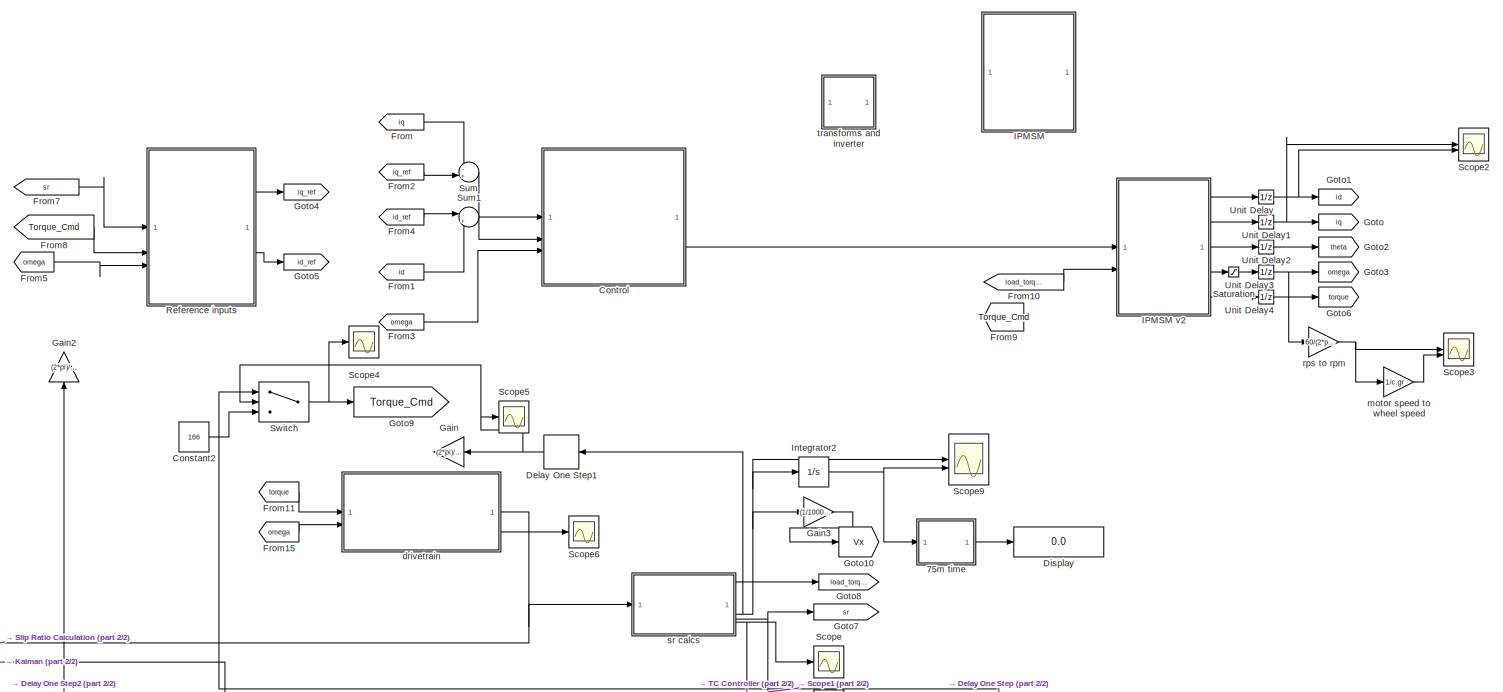
[diagram: root canvas - part 1/2, full width, top band]
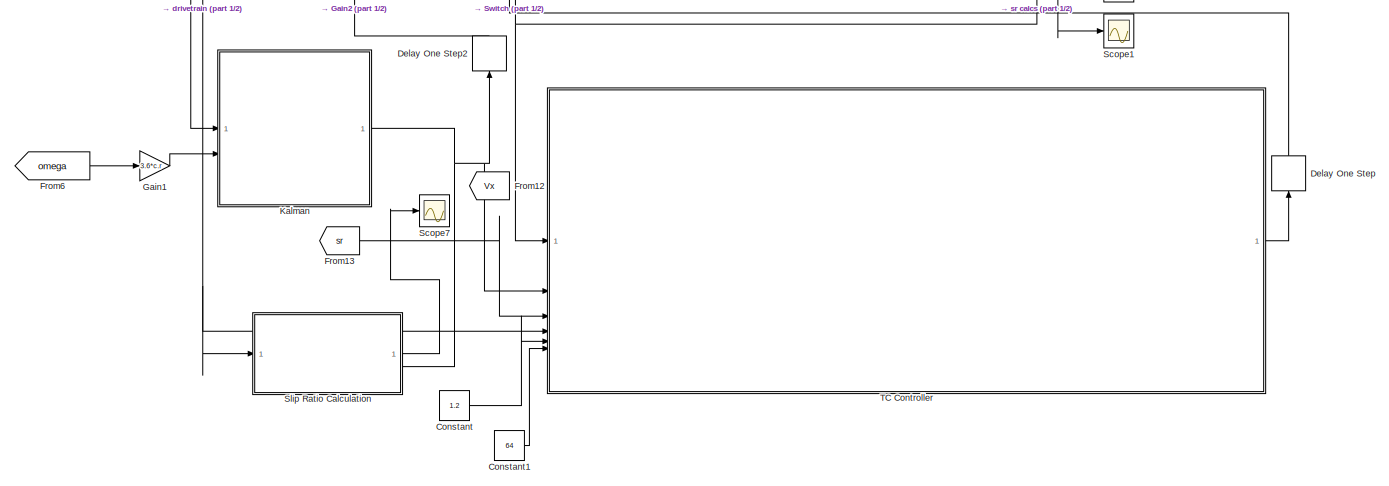
[diagram: root canvas - part 2/2, full width, bottom band]
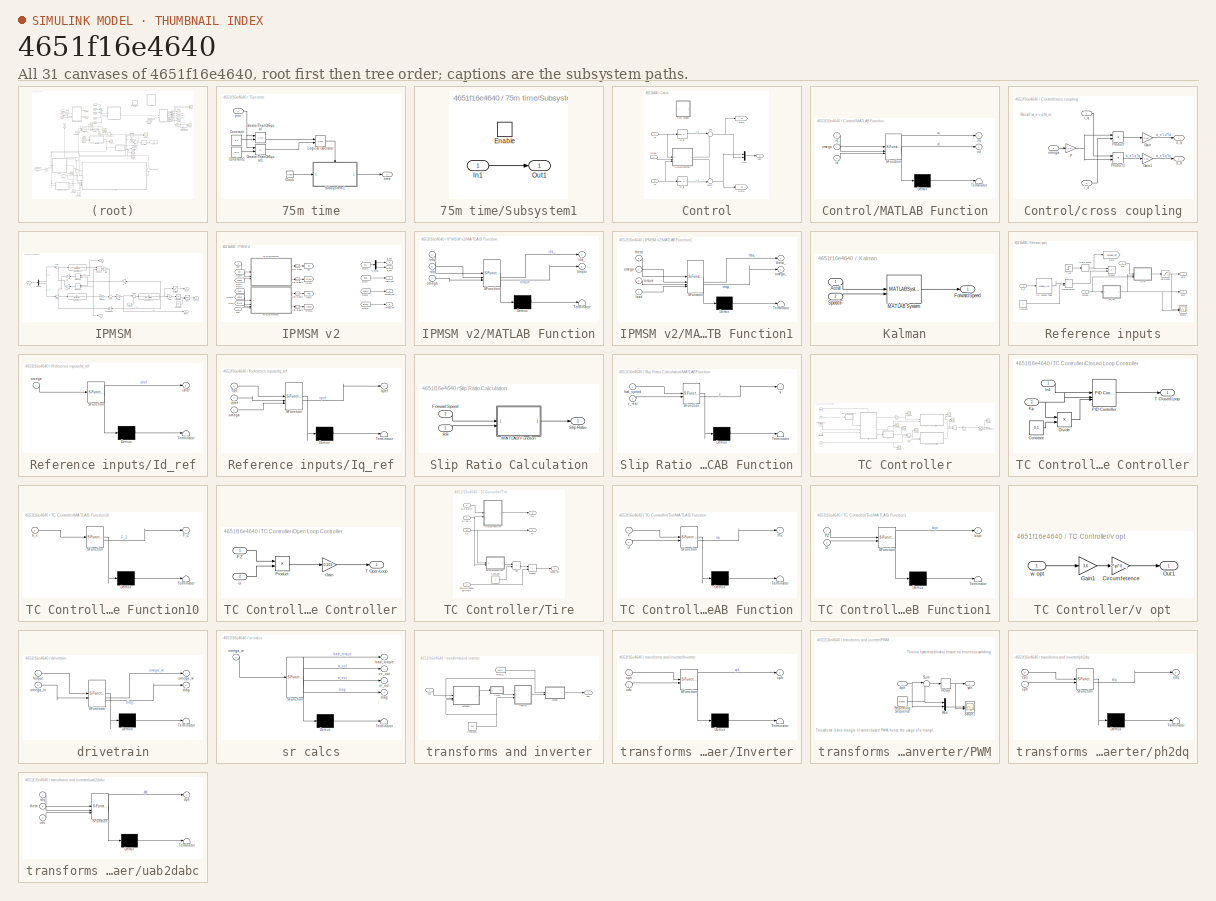
[diagram: thumbnail index - all 31 canvases of the model, root first then tree order]
MODEL slx_4651f16e4640
KIND model
CONFIG AbsTol = auto
CONFIG EnableMultiTasking = off
CONFIG FixedStep = sim.Ts
CONFIG MaxStep = auto
CONFIG MinStep = auto
CONFIG RelTol = 1e-3
CONFIG SampleTimeConstraint = Unconstrained
CONFIG SolverName = ode5
CONFIG StartTime = 0.0
CONFIG StopTime = sim.time
BLOCK [SubSystem] 75m time
BLOCK [Clock] 75m time/Clock
BLOCK [Constant] 75m time/Constant
  Value = 0.3
BLOCK [Constant] 75m time/Constant2
  Value = 75.3
BLOCK [RelationalOperator] 75m time/GreaterThanOrEqual
  InputSameDT = off
  OutDataTypeStr = boolean
  RndMeth = Simplest
BLOCK [RelationalOperator] 75m time/GreaterThanOrEqual1
  InputSameDT = off
  Operator = <=
  OutDataTypeStr = boolean
  RndMeth = Simplest
BLOCK [Logic] 75m time/Logical Operator
  AllPortsSameDT = off
  OutDataTypeStr = boolean
BLOCK [SubSystem] 75m time/Subsystem1
BLOCK [EnablePort] 75m time/Subsystem1/Enable
BLOCK [Inport] 75m time/Subsystem1/In1
BLOCK [Outport] 75m time/Subsystem1/Out1
BLOCK [Inport] 75m time/pos
BLOCK [Outport] 75m time/time
BLOCK [Constant] Constant
  Value = 1.2
BLOCK [Constant] Constant1
  Value = 64
BLOCK [Constant] Constant2
  Value = 166
BLOCK [SubSystem] Control
BLOCK [Goto] Control/Goto
  GotoTag = vq
  TagVisibility = global
BLOCK [Goto] Control/Goto1
  GotoTag = vd
  TagVisibility = global
BLOCK [SubSystem] Control/MATLAB Function
  ErrorFcn = Stateflow.Translate.translate
  PermitHierarchicalResolution = ExplicitOnly
  SFBlockType = MATLAB Function
  TreatAsAtomicUnit = on
BLOCK [Demux] Control/MATLAB Function/ Demux 
  Outputs = 1
BLOCK [S-Function] Control/MATLAB Function/ SFunction 
  EnableBusSupport = on
  FunctionName = sf_sfun
  Parameters = c
  PortCounts = [3 3]
  SFcnIsStateOwnerBlock = off
  SFunctionDeploymentMode = off
  Tag = Stateflow S-Function 6
BLOCK [Terminator] Control/MATLAB Function/ Terminator 
BLOCK [Inport] Control/MATLAB Function/id
  Port = 3
BLOCK [Inport] Control/MATLAB Function/iq
BLOCK [Inport] Control/MATLAB Function/omega
  Port = 2
BLOCK [Outport] Control/MATLAB Function/ud
  Port = 2
BLOCK [Outport] Control/MATLAB Function/uq
BLOCK [Mux] Control/Mux
  DisplayOption = bar
  Inputs = 2
BLOCK [Reference] Control/R_id  REF=slpidlib/PID Controller
  LibrarySourceBlock = simulink/Continuous/PID Controller
  SourceBlock = slpidlib/PID Controller
  SourceType = PID 1dof
BLOCK [Reference] Control/R_iq  REF=slpidlib/PID Controller
  LibrarySourceBlock = simulink/Continuous/PID Controller
  SourceBlock = slpidlib/PID Controller
  SourceType = PID 1dof
BLOCK [Sum] Control/Sum
  Inputs = |++
BLOCK [Sum] Control/Sum1
  Inputs = -+|
BLOCK [SubSystem] Control/cross coupling
  Commented = on
BLOCK [Gain] Control/cross coupling/Gain
  Gain = c.Ld
BLOCK [Gain] Control/cross coupling/Gain1
  Gain = c.Lq
BLOCK [Product] Control/cross coupling/Product
BLOCK [Product] Control/cross coupling/Product1
BLOCK [Inport] Control/cross coupling/i_d
  Port = 3
BLOCK [Inport] Control/cross coupling/i_q
BLOCK [Inport] Control/cross coupling/omega
  Port = 2
BLOCK [Gain] Control/cross coupling/p
  Gain = c.p
BLOCK [Outport] Control/cross coupling/u_d
  Port = 2
BLOCK [Outport] Control/cross coupling/u_q
BLOCK [Inport] Control/i_d
  Port = 2
BLOCK [Inport] Control/i_q
BLOCK [Inport] Control/omega
  Port = 3
BLOCK [Outport] Control/udq
BLOCK [Delay] Delay One Step
  DelayLength = 1
  InputPortMap = u0
  NameLocation = right
BLOCK [Delay] Delay One Step1
  DelayLength = 1
  InputPortMap = u0
  NameLocation = top
BLOCK [Delay] Delay One Step2
  DelayLength = 1
  InputPortMap = u0
  NameLocation = right
BLOCK [Display] Display
  Decimation = 1
BLOCK [From] From
  GotoTag = iq
  TagVisibility = global
BLOCK [From] From1
  GotoTag = id
  TagVisibility = global
BLOCK [From] From10
  GotoTag = load_torque
  NameLocation = top
  TagVisibility = global
BLOCK [From] From11
  GotoTag = torque
  TagVisibility = global
BLOCK [From] From12
  GotoTag = Vx
BLOCK [From] From13
  GotoTag = sr
  TagVisibility = global
BLOCK [From] From15
  GotoTag = omega
  TagVisibility = global
BLOCK [From] From2
  GotoTag = iq_ref
BLOCK [From] From3
  GotoTag = omega
  TagVisibility = global
BLOCK [From] From4
  GotoTag = id_ref
BLOCK [From] From5
  GotoTag = omega
  TagVisibility = global
BLOCK [From] From6
  GotoTag = omega
  TagVisibility = global
BLOCK [From] From7
  GotoTag = sr
  TagVisibility = global
BLOCK [From] From8
  GotoTag = Torque_Cmd
BLOCK [From] From9
  GotoTag = Torque_Cmd
BLOCK [Gain] Gain
  Gain = (2*pi)/60
  NameLocation = top
BLOCK [Gain] Gain1
  Gain = 3.6*c.r
BLOCK [Gain] Gain2
  Gain = (2*pi)/60
  NameLocation = right
BLOCK [Gain] Gain3
  Gain = (1/1000)*3600
BLOCK [Goto] Goto
  GotoTag = iq
  TagVisibility = global
BLOCK [Goto] Goto1
  GotoTag = id
  TagVisibility = global
BLOCK [Goto] Goto10
  GotoTag = Vx
BLOCK [Goto] Goto2
  GotoTag = theta
  TagVisibility = global
BLOCK [Goto] Goto3
  GotoTag = omega
  TagVisibility = global
BLOCK [Goto] Goto4
  GotoTag = iq_ref
BLOCK [Goto] Goto5
  GotoTag = id_ref
BLOCK [Goto] Goto6
  GotoTag = torque
  TagVisibility = global
BLOCK [Goto] Goto7
  GotoTag = sr
  TagVisibility = global
BLOCK [Goto] Goto8
  GotoTag = load_torque
  TagVisibility = global
BLOCK [Goto] Goto9
  GotoTag = Torque_Cmd
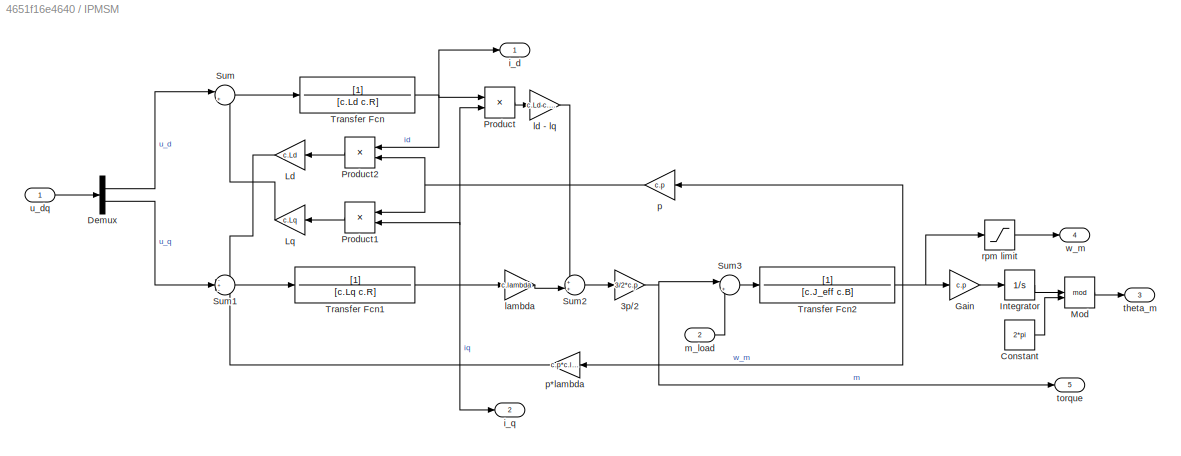
BLOCK [SubSystem] IPMSM
  Commented = on
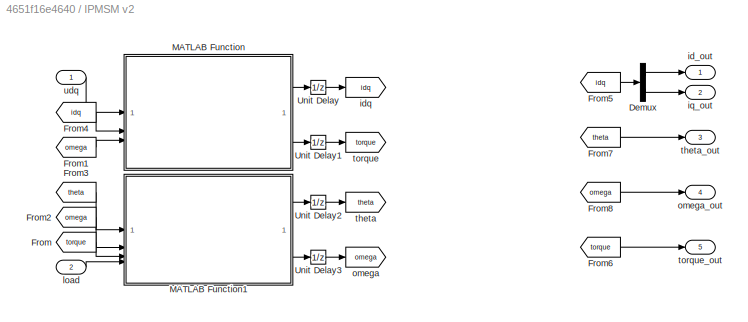
BLOCK [SubSystem] IPMSM v2
BLOCK [Demux] IPMSM v2/Demux
  Outputs = 2
BLOCK [From] IPMSM v2/From
  GotoTag = torque
BLOCK [From] IPMSM v2/From1
  GotoTag = omega
BLOCK [From] IPMSM v2/From2
  GotoTag = omega
BLOCK [From] IPMSM v2/From3
  GotoTag = theta
BLOCK [From] IPMSM v2/From4
  GotoTag = idq
BLOCK [From] IPMSM v2/From5
  GotoTag = idq
BLOCK [From] IPMSM v2/From6
  GotoTag = torque
BLOCK [From] IPMSM v2/From7
  GotoTag = theta
BLOCK [From] IPMSM v2/From8
  GotoTag = omega
BLOCK [SubSystem] IPMSM v2/MATLAB Function
  ErrorFcn = Stateflow.Translate.translate
  PermitHierarchicalResolution = ExplicitOnly
  SFBlockType = MATLAB Function
  TreatAsAtomicUnit = on
BLOCK [Demux] IPMSM v2/MATLAB Function/ Demux 
  Outputs = 1
BLOCK [S-Function] IPMSM v2/MATLAB Function/ SFunction 
  EnableBusSupport = on
  FunctionName = sf_sfun
  Parameters = c
  PortCounts = [3 3]
  SFcnIsStateOwnerBlock = off
  SFunctionDeploymentMode = off
  Tag = Stateflow S-Function 1
BLOCK [Terminator] IPMSM v2/MATLAB Function/ Terminator 
BLOCK [Inport] IPMSM v2/MATLAB Function/idq
  Port = 2
BLOCK [Outport] IPMSM v2/MATLAB Function/idq_
BLOCK [Inport] IPMSM v2/MATLAB Function/omega
  Port = 3
BLOCK [Outport] IPMSM v2/MATLAB Function/torque
  Port = 2
BLOCK [Inport] IPMSM v2/MATLAB Function/udq
BLOCK [SubSystem] IPMSM v2/MATLAB Function1
  ErrorFcn = Stateflow.Translate.translate
  PermitHierarchicalResolution = ExplicitOnly
  SFBlockType = MATLAB Function
  TreatAsAtomicUnit = on
BLOCK [Demux] IPMSM v2/MATLAB Function1/ Demux 
  Outputs = 1
BLOCK [S-Function] IPMSM v2/MATLAB Function1/ SFunction 
  EnableBusSupport = on
  FunctionName = sf_sfun
  Parameters = c
  PortCounts = [4 3]
  SFcnIsStateOwnerBlock = off
  SFunctionDeploymentMode = off
  Tag = Stateflow S-Function 4
BLOCK [Terminator] IPMSM v2/MATLAB Function1/ Terminator 
BLOCK [Inport] IPMSM v2/MATLAB Function1/load
  Port = 4
BLOCK [Inport] IPMSM v2/MATLAB Function1/omega
  Port = 2
BLOCK [Outport] IPMSM v2/MATLAB Function1/omega_
  Port = 2
BLOCK [Inport] IPMSM v2/MATLAB Function1/theta
BLOCK [Outport] IPMSM v2/MATLAB Function1/theta_
BLOCK [Inport] IPMSM v2/MATLAB Function1/torque
  Port = 3
BLOCK [UnitDelay] IPMSM v2/Unit Delay
  HasFrameUpgradeWarning = on
  SampleTime = -1
BLOCK [UnitDelay] IPMSM v2/Unit Delay1
  HasFrameUpgradeWarning = on
  SampleTime = -1
BLOCK [UnitDelay] IPMSM v2/Unit Delay2
  HasFrameUpgradeWarning = on
  SampleTime = -1
BLOCK [UnitDelay] IPMSM v2/Unit Delay3
  HasFrameUpgradeWarning = on
  SampleTime = -1
BLOCK [Outport] IPMSM v2/id_out
BLOCK [Goto] IPMSM v2/idq
  GotoTag = idq
BLOCK [Outport] IPMSM v2/iq_out
  Port = 2
BLOCK [Inport] IPMSM v2/load
  Port = 2
BLOCK [Goto] IPMSM v2/omega
  GotoTag = omega
BLOCK [Outport] IPMSM v2/omega_out
  Port = 4
BLOCK [Goto] IPMSM v2/theta
  GotoTag = theta
BLOCK [Outport] IPMSM v2/theta_out
  Port = 3
BLOCK [Goto] IPMSM v2/torque
  GotoTag = torque
BLOCK [Outport] IPMSM v2/torque_out
  Port = 5
BLOCK [Inport] IPMSM v2/udq
BLOCK [Gain] IPMSM/3p//2
  Gain = 3/2*c.p
BLOCK [Constant] IPMSM/Constant
  Value = 2*pi
BLOCK [Demux] IPMSM/Demux
  Outputs = 2
BLOCK [Gain] IPMSM/Gain
  Gain = c.p
BLOCK [Integrator] IPMSM/Integrator
BLOCK [Gain] IPMSM/Ld
  Gain = c.Ld
BLOCK [Gain] IPMSM/Lq
  Gain = c.Lq
BLOCK [Math] IPMSM/Mod
  Operator = mod
BLOCK [Product] IPMSM/Product
BLOCK [Product] IPMSM/Product1
  NameLocation = top
BLOCK [Product] IPMSM/Product2
  NameLocation = top
BLOCK [Sum] IPMSM/Sum
  Inputs = |++
BLOCK [Sum] IPMSM/Sum1
  Inputs = -+-
BLOCK [Sum] IPMSM/Sum2
  Inputs = ++|
BLOCK [Sum] IPMSM/Sum3
  Inputs = |+-
BLOCK [TransferFcn] IPMSM/Transfer Fcn
  Denominator = [c.Ld c.R]
BLOCK [TransferFcn] IPMSM/Transfer Fcn1
  Denominator = [c.Lq c.R]
BLOCK [TransferFcn] IPMSM/Transfer Fcn2
  Denominator = [c.J_eff c.B]
BLOCK [Outport] IPMSM/i_d
BLOCK [Outport] IPMSM/i_q
  Port = 2
BLOCK [Gain] IPMSM/lambda
  Gain = c.lambda
BLOCK [Gain] IPMSM/ld - lq
  Gain = c.Ld-c.Lq
BLOCK [Inport] IPMSM/m_load
  Port = 2
BLOCK [Gain] IPMSM/p
  Gain = c.p
BLOCK [Gain] IPMSM/p*lambda
  Gain = c.p*c.lambda
BLOCK [Saturate] IPMSM/rpm limit
  LowerLimit = 0
  UpperLimit = c.max_rpm
BLOCK [Outport] IPMSM/theta_m
  Port = 3
BLOCK [Outport] IPMSM/torque
  Port = 5
BLOCK [Inport] IPMSM/u_dq
BLOCK [Outport] IPMSM/w_m
  Port = 4
BLOCK [Integrator] Integrator2
BLOCK [SubSystem] Kalman
BLOCK [Inport] Kalman/Accel
BLOCK [Outport] Kalman/Forward Speed
BLOCK [MATLABSystem] Kalman/MATLAB System
  MaskDisplay = disp('Kalman_Filter_Simulink');\nport_label('input',1,'a');\nport_label('input',2,'v_f');\nport_label('output',1,'v');
  MaskType = Kalman_Filter_Simulink
  SimulateUsing = Code generation
  System = Kalman_Filter_Simulink
  qgain = 1
BLOCK [Inport] Kalman/Speed F
  Port = 2
BLOCK [SubSystem] Reference inputs
BLOCK [Lookup_n-D] Reference inputs/1-D Lookup Table
  BreakpointsForDimension1 = linspace(0, 0.5, 100)
  InputPortMap = u0
  InternalRulePriority = Speed
  NumberOfTableDimensions = 1
  RndMeth = Simplest
  Table = (-tanh(linspace(-3, 3, 100))+1)/2
BLOCK [Constant] Reference inputs/Constant
BLOCK [Goto] Reference inputs/Goto
  GotoTag = torque_ref
  TagVisibility = global
BLOCK [SubSystem] Reference inputs/Id_ref
  ErrorFcn = Stateflow.Translate.translate
  PermitHierarchicalResolution = ExplicitOnly
  SFBlockType = MATLAB Function
  TreatAsAtomicUnit = on
BLOCK [Demux] Reference inputs/Id_ref/ Demux 
  Outputs = 1
BLOCK [S-Function] Reference inputs/Id_ref/ SFunction 
  EnableBusSupport = on
  FunctionName = sf_sfun
  Parameters = c
  PortCounts = [1 2]
  SFcnIsStateOwnerBlock = off
  SFunctionDeploymentMode = off
  Tag = Stateflow S-Function 9
BLOCK [Terminator] Reference inputs/Id_ref/ Terminator 
BLOCK [Outport] Reference inputs/Id_ref/idref
BLOCK [Inport] Reference inputs/Id_ref/omega
BLOCK [SubSystem] Reference inputs/Iq_ref
  ErrorFcn = Stateflow.Translate.translate
  PermitHierarchicalResolution = ExplicitOnly
  SFBlockType = MATLAB Function
  TreatAsAtomicUnit = on
BLOCK [Demux] Reference inputs/Iq_ref/ Demux 
  Outputs = 1
BLOCK [S-Function] Reference inputs/Iq_ref/ SFunction 
  EnableBusSupport = on
  FunctionName = sf_sfun
  Parameters = c
  PortCounts = [3 2]
  SFcnIsStateOwnerBlock = off
  SFunctionDeploymentMode = off
  Tag = Stateflow S-Function 5
BLOCK [Terminator] Reference inputs/Iq_ref/ Terminator 
BLOCK [Inport] Reference inputs/Iq_ref/Tref
BLOCK [Inport] Reference inputs/Iq_ref/idref
  Port = 2
BLOCK [Outport] Reference inputs/Iq_ref/iqref
BLOCK [Inport] Reference inputs/Iq_ref/omega
  Port = 3
BLOCK [ManualSwitch] Reference inputs/Manual Switch
BLOCK [Product] Reference inputs/Product
BLOCK [RateLimiter] Reference inputs/Rate Limiter
  FallingSlewLimit = -5e3
  RisingSlewLimit = 5e3
  SampleTimeMode = inherited
BLOCK [Saturate] Reference inputs/Saturation
  LowerLimit = -c.I_peak
  UpperLimit = c.I_peak
BLOCK [Scope] Reference inputs/Scope1
  Floating = off
  NumInputPorts = 2
  ScopeSpecificationString = Simulink.scopes.TimeScopeBlockCfg('CurrentConfiguration', extmgr.ConfigurationSet(extmgr.Configuration('Core','General UI',true),extmgr.Configuration('Core','Source UI',true),extmgr.Configuration('Sources','WiredSimulink',true,'DataLoggingVariableName','ScopeData1'),extmgr.Configuration('Visuals','Time Domain',true,'SerializedDisplays',{struct('MinYLimReal','-247.40296','MaxYLimReal','426.56086','...<+1511ch>
BLOCK [Step] Reference inputs/T_ref
  After = T_ref
  SampleTime = sim.Ts
  Time = 0
BLOCK [Inport] Reference inputs/Tref
  Port = 2
BLOCK [Outport] Reference inputs/idref
  Port = 2
BLOCK [Outport] Reference inputs/iqref
BLOCK [Inport] Reference inputs/omega
  Port = 3
BLOCK [Inport] Reference inputs/sr_in
BLOCK [Saturate] Saturation
  LowerLimit = 0
  UpperLimit = c.max_rpm
BLOCK [Scope] Scope
  Floating = off
  NumInputPorts = 1
  ScopeSpecificationString = Simulink.scopes.TimeScopeBlockCfg('CurrentConfiguration', extmgr.ConfigurationSet(extmgr.Configuration('Core','General UI',true),extmgr.Configuration('Core','Source UI',true),extmgr.Configuration('Sources','WiredSimulink',true,'DataLoggingVariableName','ScopeData1'),extmgr.Configuration('Visuals','Time Domain',true,'SerializedDisplays',{struct('MinYLimReal','-0.10137','MaxYLimReal','0.91232','YLab...<+1555ch>
BLOCK [Scope] Scope1
  Floating = off
  NumInputPorts = 1
  ScopeSpecificationString = Simulink.scopes.TimeScopeBlockCfg('CurrentConfiguration', extmgr.ConfigurationSet(extmgr.Configuration('Core','General UI',true),extmgr.Configuration('Core','Source UI',true),extmgr.Configuration('Sources','WiredSimulink',true,'DataLoggingVariableName','ScopeData2'),extmgr.Configuration('Visuals','Time Domain',true,'SerializedDisplays',{struct('MinYLimReal','-36731175379511787494187982823609684287...<+2842ch>
BLOCK [Scope] Scope2
  Floating = off
  NumInputPorts = 2
  ScopeSpecificationString = Simulink.scopes.TimeScopeBlockCfg('CurrentConfiguration', extmgr.ConfigurationSet(extmgr.Configuration('Core','General UI',true),extmgr.Configuration('Core','Source UI',true),extmgr.Configuration('Sources','WiredSimulink',true,'DataLoggingVariableName','ScopeData2'),extmgr.Configuration('Visuals','Time Domain',true,'SerializedDisplays',{struct('MinYLimReal','-92604.51498','MaxYLimReal','91278.9172...<+1521ch>
BLOCK [Scope] Scope3
  Floating = off
  NumInputPorts = 2
  ScopeSpecificationString = Simulink.scopes.TimeScopeBlockCfg('CurrentConfiguration', extmgr.ConfigurationSet(extmgr.Configuration('Core','General UI',true),extmgr.Configuration('Core','Source UI',true),extmgr.Configuration('Sources','WiredSimulink',true,'DataLoggingVariableName','ScopeData3'),extmgr.Configuration('Visuals','Time Domain',true,'SerializedDisplays',{struct('MinYLimReal','-19.65378','MaxYLimReal','181.39327','Y...<+1616ch>
BLOCK [Scope] Scope4
  Floating = off
  NumInputPorts = 1
  ScopeSpecificationString = Simulink.scopes.TimeScopeBlockCfg('CurrentConfiguration', extmgr.ConfigurationSet(extmgr.Configuration('Core','General UI',true),extmgr.Configuration('Core','Source UI',true),extmgr.Configuration('Sources','WiredSimulink',true,'DataLoggingVariableName','ScopeData1'),extmgr.Configuration('Visuals','Time Domain',true,'SerializedDisplays',{struct('MinYLimReal','0.61024','MaxYLimReal','171.83301','YLa...<+1638ch>
BLOCK [Scope] Scope5
  Floating = off
  NumInputPorts = 1
  ScopeSpecificationString = Simulink.scopes.TimeScopeBlockCfg('CurrentConfiguration', extmgr.ConfigurationSet(extmgr.Configuration('Core','General UI',true),extmgr.Configuration('Core','Source UI',true),extmgr.Configuration('Sources','WiredSimulink',true,'DataLoggingVariableName','ScopeData2'),extmgr.Configuration('Visuals','Time Domain',true,'SerializedDisplays',{struct('MinYLimReal','-0.1371','MaxYLimReal','1.23387','YLabe...<+1461ch>
BLOCK [Scope] Scope6
  Floating = off
  NumInputPorts = 1
  ScopeSpecificationString = Simulink.scopes.TimeScopeBlockCfg('CurrentConfiguration', extmgr.ConfigurationSet(extmgr.Configuration('Core','General UI',true),extmgr.Configuration('Core','Source UI',true),extmgr.Configuration('Sources','WiredSimulink',true,'DataLoggingVariableName','ScopeData3'),extmgr.Configuration('Visuals','Time Domain',true,'SerializedDisplays',{struct('MinYLimReal','-0.98767','MaxYLimReal','8.88903','YLab...<+1652ch>
BLOCK [Scope] Scope7
  Floating = off
  NumInputPorts = 1
  ScopeSpecificationString = Simulink.scopes.TimeScopeBlockCfg('CurrentConfiguration', extmgr.ConfigurationSet(extmgr.Configuration('Core','General UI',true),extmgr.Configuration('Core','Source UI',true),extmgr.Configuration('Sources','WiredSimulink',true,'DataLoggingVariableName','ScopeData3'),extmgr.Configuration('Visuals','Time Domain',true,'SerializedDisplays',{struct('MinYLimReal','-1.36638','MaxYLimReal','2.29745','YLab...<+1489ch>
BLOCK [Scope] Scope9
  Floating = off
  NumInputPorts = 2
  ScopeSpecificationString = Simulink.scopes.TimeScopeBlockCfg('CurrentConfiguration', extmgr.ConfigurationSet(extmgr.Configuration('Core','General UI',true),extmgr.Configuration('Core','Source UI',true),extmgr.Configuration('Sources','WiredSimulink',true,'DataLoggingVariableName','ScopeData1'),extmgr.Configuration('Visuals','Time Domain',true,'SerializedDisplays',{struct('MinYLimReal','-0.0245','MaxYLimReal','0.22051','YLabe...<+1539ch>
BLOCK [SubSystem] Slip Ratio Calculation
  PortSchema = {"entries":[{"content":{"sides":[{"content":{"connectorIds":["In1"]},"type":"ConnectorPlacement.EquallySpacedRectSide","uuid":"061c82cd-7e9c-4a72-b965-43235230dad9"},{"content":{"connectorIds":["Out1"],"side":"RIGHT"},"type":"ConnectorPlacement.EquallySpacedRectSide","uuid":"899eaa50-1c30-4f77-9d66-a8daefd9f1e3"},{"content":{"connectorIds":["In2"],"side":"TOP"},"type":"ConnectorPlacement.EquallySp...<+245ch>
BLOCK [Inport] Slip Ratio Calculation/Forward Speed
  Port = 2
BLOCK [SubSystem] Slip Ratio Calculation/MATLAB Function
  ErrorFcn = Stateflow.Translate.translate
  PermitHierarchicalResolution = ExplicitOnly
  SFBlockType = MATLAB Function
  TreatAsAtomicUnit = on
BLOCK [Demux] Slip Ratio Calculation/MATLAB Function/ Demux 
  Outputs = 1
BLOCK [S-Function] Slip Ratio Calculation/MATLAB Function/ SFunction 
  EnableBusSupport = on
  FunctionName = sf_sfun
  PortCounts = [2 2]
  SFcnIsStateOwnerBlock = off
  SFunctionDeploymentMode = off
  Tag = Stateflow S-Function 10
BLOCK [Terminator] Slip Ratio Calculation/MATLAB Function/ Terminator 
BLOCK [Inport] Slip Ratio Calculation/MATLAB Function/fwd_speed
BLOCK [Inport] Slip Ratio Calculation/MATLAB Function/v_rear
  Port = 2
BLOCK [Outport] Slip Ratio Calculation/MATLAB Function/y
BLOCK [Inport] Slip Ratio Calculation/RR
BLOCK [Outport] Slip Ratio Calculation/Slip Ratio
BLOCK [Sum] Sum
  Inputs = -+|
BLOCK [Sum] Sum1
  Inputs = |+-
BLOCK [Switch] Switch
  Criteria = u2 > Threshold
  InputSameDT = off
  SaturateOnIntegerOverflow = off
BLOCK [SubSystem] TC Controller
BLOCK [Sum] TC Controller/Add
  IconShape = rectangular
BLOCK [SubSystem] TC Controller/Closed Loop Controller
BLOCK [Constant] TC Controller/Closed Loop Controller/Constant
  Value = 0.5
BLOCK [Product] TC Controller/Closed Loop Controller/Divide
  Inputs = */
BLOCK [Inport] TC Controller/Closed Loop Controller/In1
BLOCK [Inport] TC Controller/Closed Loop Controller/Kp
  Port = 2
BLOCK [Reference] TC Controller/Closed Loop Controller/PID Controller  REF=slpidlib/PID Controller
  LibrarySourceBlock = simulink/Continuous/PID Controller
  SourceBlock = slpidlib/PID Controller
  SourceType = PID 1dof
BLOCK [Outport] TC Controller/Closed Loop Controller/T Closed Loop
BLOCK [Inport] TC Controller/Driver u
  Port = 5
BLOCK [Inport] TC Controller/Forward Speed Estimate
  Port = 2
BLOCK [Gain] TC Controller/Gain
  Gain = 9.8
BLOCK [Gain] TC Controller/Gain1
  Gain = 1/4.9
BLOCK [Inport] TC Controller/Kp
  Port = 6
BLOCK [SubSystem] TC Controller/MATLAB Function10
  ErrorFcn = Stateflow.Translate.translate
  PermitHierarchicalResolution = ExplicitOnly
  SFBlockType = MATLAB Function
  TreatAsAtomicUnit = on
BLOCK [Demux] TC Controller/MATLAB Function10/ Demux 
  Outputs = 1
BLOCK [S-Function] TC Controller/MATLAB Function10/ SFunction 
  EnableBusSupport = on
  FunctionName = sf_sfun
  PortCounts = [1 2]
  SFcnIsStateOwnerBlock = off
  SFunctionDeploymentMode = off
  Tag = Stateflow S-Function 16
BLOCK [Terminator] TC Controller/MATLAB Function10/ Terminator 
BLOCK [Outport] TC Controller/MATLAB Function10/F_Z
BLOCK [Inport] TC Controller/MATLAB Function10/a_x
BLOCK [SubSystem] TC Controller/Open Loop Controller
BLOCK [Inport] TC Controller/Open Loop Controller/FZ
BLOCK [Gain] TC Controller/Open Loop Controller/Gain
  Gain = 0.203
BLOCK [Product] TC Controller/Open Loop Controller/Product
BLOCK [Outport] TC Controller/Open Loop Controller/T Open Loop
BLOCK [Inport] TC Controller/Open Loop Controller/u
  Port = 2
BLOCK [Saturate] TC Controller/Saturation
  LowerLimit = 0
  UpperLimit = 166
BLOCK [Scope] TC Controller/Scope
  Floating = off
  NumInputPorts = 1
  ScopeSpecificationString = Simulink.scopes.TimeScopeBlockCfg('CurrentConfiguration', extmgr.ConfigurationSet(extmgr.Configuration('Core','General UI',true),extmgr.Configuration('Core','Source UI',true),extmgr.Configuration('Sources','WiredSimulink',true,'DataLoggingVariableName','ScopeData1'),extmgr.Configuration('Visuals','Time Domain',true,'SerializedDisplays',{struct('MinYLimReal','-20.75','MaxYLimReal','186.75','YLabelR...<+1494ch>
BLOCK [Scope] TC Controller/Scope1
  Floating = off
  NumInputPorts = 1
  ScopeSpecificationString = Simulink.scopes.TimeScopeBlockCfg('CurrentConfiguration', extmgr.ConfigurationSet(extmgr.Configuration('Core','General UI',true),extmgr.Configuration('Core','Source UI',true),extmgr.Configuration('Sources','WiredSimulink',true,'DataLoggingVariableName','ScopeData2'),extmgr.Configuration('Visuals','Time Domain',true,'SerializedDisplays',{struct('MinYLimReal','-48.73024','MaxYLimReal','10.6881','YLa...<+1518ch>
BLOCK [Scope] TC Controller/Scope2
  Floating = off
  NumInputPorts = 1
  ScopeSpecificationString = Simulink.scopes.TimeScopeBlockCfg('CurrentConfiguration', extmgr.ConfigurationSet(extmgr.Configuration('Core','General UI',true),extmgr.Configuration('Core','Source UI',true),extmgr.Configuration('Sources','WiredSimulink',true,'DataLoggingVariableName','ScopeData3'),extmgr.Configuration('Visuals','Time Domain',true,'SerializedDisplays',{struct('MinYLimReal','-23.21751','MaxYLimReal','115.79176','Y...<+1497ch>
BLOCK [Scope] TC Controller/Scope3
  Floating = off
  NumInputPorts = 1
  ScopeSpecificationString = Simulink.scopes.TimeScopeBlockCfg('CurrentConfiguration', extmgr.ConfigurationSet(extmgr.Configuration('Core','General UI',true),extmgr.Configuration('Core','Source UI',true),extmgr.Configuration('Sources','WiredSimulink',true,'DataLoggingVariableName','ScopeData4'),extmgr.Configuration('Visuals','Time Domain',true,'SerializedDisplays',{struct('MinYLimReal','-0.14999','MaxYLimReal','1.34995','YLab...<+1474ch>
BLOCK [Scope] TC Controller/Scope4
  Floating = off
  NumInputPorts = 1
  ScopeSpecificationString = Simulink.scopes.TimeScopeBlockCfg('CurrentConfiguration', extmgr.ConfigurationSet(extmgr.Configuration('Core','General UI',true),extmgr.Configuration('Core','Source UI',true),extmgr.Configuration('Sources','WiredSimulink',true,'DataLoggingVariableName','ScopeData5'),extmgr.Configuration('Visuals','Time Domain',true,'SerializedDisplays',{struct('MinYLimReal','1556.73934','MaxYLimReal','1559.23366',...<+1493ch>
BLOCK [Scope] TC Controller/Scope5
  Floating = off
  NumInputPorts = 1
  ScopeSpecificationString = Simulink.scopes.TimeScopeBlockCfg('CurrentConfiguration', extmgr.ConfigurationSet(extmgr.Configuration('Core','General UI',true),extmgr.Configuration('Core','Source UI',true),extmgr.Configuration('Sources','WiredSimulink',true,'DataLoggingVariableName','ScopeData6'),extmgr.Configuration('Visuals','Time Domain',true,'SerializedDisplays',{struct('MinYLimReal','-0.22526','MaxYLimReal','0.38645','YLab...<+1472ch>
BLOCK [Scope] TC Controller/Scope6
  Floating = off
  NumInputPorts = 1
  ScopeSpecificationString = Simulink.scopes.TimeScopeBlockCfg('CurrentConfiguration', extmgr.ConfigurationSet(extmgr.Configuration('Core','General UI',true),extmgr.Configuration('Core','Source UI',true),extmgr.Configuration('Sources','WiredSimulink',true,'DataLoggingVariableName','ScopeData1'),extmgr.Configuration('Visuals','Time Domain',true,'SerializedDisplays',{struct('MinYLimReal','-0.19753','MaxYLimReal','0.04392','YLab...<+1475ch>
BLOCK [Scope] TC Controller/Scope7
  Floating = off
  NumInputPorts = 1
  ScopeSpecificationString = Simulink.scopes.TimeScopeBlockCfg('CurrentConfiguration', extmgr.ConfigurationSet(extmgr.Configuration('Core','General UI',true),extmgr.Configuration('Core','Source UI',true),extmgr.Configuration('Sources','WiredSimulink',true,'DataLoggingVariableName','ScopeData2'),extmgr.Configuration('Visuals','Time Domain',true,'SerializedDisplays',{struct('MinYLimReal','-11.72705','MaxYLimReal','105.54344','Y...<+1482ch>
BLOCK [Inport] TC Controller/Slip Ratio
  Port = 3
BLOCK [Sum] TC Controller/Subtract
  IconShape = rectangular
  Inputs = +-
BLOCK [SubSystem] TC Controller/Tire
  PortSchema = {"entries":[{"content":{"sides":[{"content":{"connectorIds":["In1","In2","In3"]},"type":"ConnectorPlacement.EquallySpacedRectSide","uuid":"4156dcb8-571a-4ee4-a7f1-7560a1681aa7"},{"content":{"connectorIds":["Out1","Out2","Out3"],"side":"RIGHT"},"type":"ConnectorPlacement.EquallySpacedRectSide","uuid":"73638d28-b906-4671-b83f-ad6b48e8d393"},{"content":{"connectorIds":["In4"],"side":"TOP"},"type":"Co...<+271ch>
BLOCK [Sum] TC Controller/Tire/Add
  IconShape = rectangular
BLOCK [Constant] TC Controller/Tire/Constant
BLOCK [Inport] TC Controller/Tire/Driver u
  Port = 4
BLOCK [Outport] TC Controller/Tire/FZ
BLOCK [Inport] TC Controller/Tire/F_Z
BLOCK [Inport] TC Controller/Tire/Forward Speed Estimate
  Port = 2
BLOCK [SubSystem] TC Controller/Tire/MATLAB Function
  ErrorFcn = Stateflow.Translate.translate
  PermitHierarchicalResolution = ExplicitOnly
  SFBlockType = MATLAB Function
  TreatAsAtomicUnit = on
BLOCK [Demux] TC Controller/Tire/MATLAB Function/ Demux 
  Outputs = 1
BLOCK [S-Function] TC Controller/Tire/MATLAB Function/ SFunction 
  EnableBusSupport = on
  FunctionName = sf_sfun
  PortCounts = [2 2]
  SFcnIsStateOwnerBlock = off
  SFunctionDeploymentMode = off
  Tag = Stateflow S-Function 17
BLOCK [Terminator] TC Controller/Tire/MATLAB Function/ Terminator 
BLOCK [Inport] TC Controller/Tire/MATLAB Function/D
  Port = 2
BLOCK [Inport] TC Controller/Tire/MATLAB Function/k
BLOCK [Outport] TC Controller/Tire/MATLAB Function/mu
BLOCK [SubSystem] TC Controller/Tire/MATLAB Function1
  ErrorFcn = Stateflow.Translate.translate
  PermitHierarchicalResolution = ExplicitOnly
  SFBlockType = MATLAB Function
  TreatAsAtomicUnit = on
BLOCK [Demux] TC Controller/Tire/MATLAB Function1/ Demux 
  Outputs = 1
BLOCK [S-Function] TC Controller/Tire/MATLAB Function1/ SFunction 
  EnableBusSupport = on
  FunctionName = sf_sfun
  PortCounts = [2 2]
  SFcnIsStateOwnerBlock = off
  SFunctionDeploymentMode = off
  Tag = Stateflow S-Function 18
BLOCK [Terminator] TC Controller/Tire/MATLAB Function1/ Terminator 
BLOCK [Inport] TC Controller/Tire/MATLAB Function1/D
  Port = 2
BLOCK [Inport] TC Controller/Tire/MATLAB Function1/FZ
BLOCK [Outport] TC Controller/Tire/MATLAB Function1/kopt
BLOCK [Product] TC Controller/Tire/Product
BLOCK [Inport] TC Controller/Tire/Slip Ratio
  Port = 3
BLOCK [Outport] TC Controller/Tire/mu
  Port = 2
BLOCK [Outport] TC Controller/Tire/speed opt
  Port = 3
BLOCK [Outport] TC Controller/Torque Command
BLOCK [Inport] TC Controller/a_x
BLOCK [SubSystem] TC Controller/v opt
  Commented = through
BLOCK [Gain] TC Controller/v opt/Circumference
  Gain = 2*pi*0.203
BLOCK [Gain] TC Controller/v opt/Gain1
  Gain = 3.6
BLOCK [Outport] TC Controller/v opt/Out1
BLOCK [Inport] TC Controller/v opt/w opt
BLOCK [Inport] TC Controller/v_avg
  Port = 4
BLOCK [UnitDelay] Unit Delay
  HasFrameUpgradeWarning = on
  SampleTime = -1
BLOCK [UnitDelay] Unit Delay1
  HasFrameUpgradeWarning = on
  SampleTime = -1
BLOCK [UnitDelay] Unit Delay2
  HasFrameUpgradeWarning = on
  SampleTime = -1
BLOCK [UnitDelay] Unit Delay3
  HasFrameUpgradeWarning = on
  SampleTime = -1
BLOCK [UnitDelay] Unit Delay4
  HasFrameUpgradeWarning = on
  SampleTime = -1
BLOCK [SubSystem] drivetrain
  ErrorFcn = Stateflow.Translate.translate
  PermitHierarchicalResolution = ExplicitOnly
  SFBlockType = MATLAB Function
  TreatAsAtomicUnit = on
BLOCK [Demux] drivetrain/ Demux 
  Outputs = 1
BLOCK [S-Function] drivetrain/ SFunction 
  EnableBusSupport = on
  FunctionName = sf_sfun
  Parameters = c
  PortCounts = [2 3]
  SFcnIsStateOwnerBlock = off
  SFunctionDeploymentMode = off
  Tag = Stateflow S-Function 7
BLOCK [Terminator] drivetrain/ Terminator 
BLOCK [Outport] drivetrain/diag
  Port = 2
BLOCK [Inport] drivetrain/omega_in
  Port = 2
BLOCK [Outport] drivetrain/omega_w
BLOCK [Inport] drivetrain/torque
BLOCK [Gain] motor speed to wheel speed
  Gain = 1/c.gr
BLOCK [Gain] rps to rpm
  Gain = 60/(2*pi)
BLOCK [SubSystem] sr calcs
  ErrorFcn = Stateflow.Translate.translate
  PermitHierarchicalResolution = ExplicitOnly
  SFBlockType = MATLAB Function
  TreatAsAtomicUnit = on
BLOCK [Demux] sr calcs/ Demux 
  Outputs = 1
BLOCK [S-Function] sr calcs/ SFunction 
  EnableBusSupport = on
  FunctionName = sf_sfun
  Parameters = c
  PortCounts = [1 5]
  SFcnIsStateOwnerBlock = off
  SFunctionDeploymentMode = off
  Tag = Stateflow S-Function 8
BLOCK [Terminator] sr calcs/ Terminator 
BLOCK [Outport] sr calcs/diag
  Port = 4
BLOCK [Outport] sr calcs/load_torque
BLOCK [Inport] sr calcs/omega_w
BLOCK [Outport] sr calcs/sr_out
  Port = 3
BLOCK [Outport] sr calcs/vx_out
  Port = 2
BLOCK [SubSystem] transforms and inverter
  Commented = on
BLOCK [Constant] transforms and inverter/Constant1
  SampleTime = Inf
  Value = 302
BLOCK [From] transforms and inverter/From12
  GotoTag = theta
  TagVisibility = global
BLOCK [SubSystem] transforms and inverter/Inverter
  ErrorFcn = Stateflow.Translate.translate
  PermitHierarchicalResolution = ExplicitOnly
  SFBlockType = MATLAB Function
  TreatAsAtomicUnit = on
BLOCK [Demux] transforms and inverter/Inverter/ Demux 
  Outputs = 1
BLOCK [S-Function] transforms and inverter/Inverter/ SFunction 
  EnableBusSupport = on
  FunctionName = sf_sfun
  PortCounts = [2 2]
  SFcnIsStateOwnerBlock = off
  SFunctionDeploymentMode = off
  Tag = Stateflow S-Function 3
BLOCK [Terminator] transforms and inverter/Inverter/ Terminator 
BLOCK [Inport] transforms and inverter/Inverter/sph
BLOCK [Inport] transforms and inverter/Inverter/udc
  Port = 2
BLOCK [Outport] transforms and inverter/Inverter/vph
BLOCK [SubSystem] transforms and inverter/PWM
BLOCK [Mux] transforms and inverter/PWM/Mux
  DisplayOption = bar
  Inputs = 2
BLOCK [Relay] transforms and inverter/PWM/Relay
  OffSwitchValue = -2e-10
  OnSwitchValue = 2e-10
BLOCK [Reference] transforms and inverter/PWM/Repeating Sequence  REF=simulink/Sources/Repeating
Sequence
  SourceBlock = simulink/Sources/Repeating\nSequence
  SourceType = Repeating table
BLOCK [Scope] transforms and inverter/PWM/Scope1
  Floating = off
  NumInputPorts = 2
  ScopeSpecificationString = Simulink.scopes.TimeScopeBlockCfg('CurrentConfiguration', extmgr.ConfigurationSet(extmgr.Configuration('Core','General UI',true),extmgr.Configuration('Core','Source UI',true),extmgr.Configuration('Sources','WiredSimulink',true,'DataLoggingVariableName','ScopeData6','DataLoggingSaveFormat','StructureWithTime','DataLoggingDecimation','1','DataLoggingDecimateData',true),extmgr.Configuration('Visuals'...<+2460ch>
BLOCK [Sum] transforms and inverter/PWM/Sum
  Inputs = |+-
BLOCK [Inport] transforms and inverter/PWM/dph
BLOCK [Outport] transforms and inverter/PWM/sph
BLOCK [SubSystem] transforms and inverter/ph2dq
  ErrorFcn = Stateflow.Translate.translate
  PermitHierarchicalResolution = ExplicitOnly
  SFBlockType = MATLAB Function
  TreatAsAtomicUnit = on
BLOCK [Demux] transforms and inverter/ph2dq/ Demux 
  Outputs = 1
BLOCK [S-Function] transforms and inverter/ph2dq/ SFunction 
  EnableBusSupport = on
  FunctionName = sf_sfun
  PortCounts = [2 2]
  SFcnIsStateOwnerBlock = off
  SFunctionDeploymentMode = off
  Tag = Stateflow S-Function 12
BLOCK [Terminator] transforms and inverter/ph2dq/ Terminator 
BLOCK [Inport] transforms and inverter/ph2dq/eps
BLOCK [Outport] transforms and inverter/ph2dq/xdq
BLOCK [Inport] transforms and inverter/ph2dq/xph
  Port = 2
BLOCK [SubSystem] transforms and inverter/uab2dabc
  ErrorFcn = Stateflow.Translate.translate
  PermitHierarchicalResolution = ExplicitOnly
  SFBlockType = MATLAB Function
  TreatAsAtomicUnit = on
BLOCK [Demux] transforms and inverter/uab2dabc/ Demux 
  Outputs = 1
BLOCK [S-Function] transforms and inverter/uab2dabc/ SFunction 
  EnableBusSupport = on
  FunctionName = sf_sfun
  PortCounts = [3 2]
  SFcnIsStateOwnerBlock = off
  SFunctionDeploymentMode = off
  Tag = Stateflow S-Function 2
BLOCK [Terminator] transforms and inverter/uab2dabc/ Terminator 
BLOCK [Outport] transforms and inverter/uab2dabc/dph
BLOCK [Inport] transforms and inverter/uab2dabc/theta
  Port = 2
BLOCK [Inport] transforms and inverter/uab2dabc/udc
  Port = 3
BLOCK [Inport] transforms and inverter/uab2dabc/vdq
BLOCK [Inport] transforms and inverter/vdq
BLOCK [Outport] transforms and inverter/xdq
ANNOTATION Control/cross coupling: Recall w_e = p*w_m
ANNOTATION transforms and inverter/PWM: This is a hysteresis block to ensure no erroneous switching
ANNOTATION transforms and inverter/PWM: This scheme is sine-triangle or carrier-based PWM, hence the usage of a triangle wave and taking the difference between the input sinusoid and the triangle to generate the PWM waveform, i.e. what Winston was talking about with train inverters
LINE 75m time/Clock:1 -> 75m time/Subsystem1:1
LINE 75m time/Constant2:1 -> 75m time/GreaterThanOrEqual1:2
LINE 75m time/Constant:1 -> 75m time/GreaterThanOrEqual:2
LINE 75m time/GreaterThanOrEqual1:1 -> 75m time/Logical Operator:2
LINE 75m time/GreaterThanOrEqual:1 -> 75m time/Logical Operator:1
LINE 75m time/Logical Operator:1 -> 75m time/Subsystem1:enable
LINE 75m time/Subsystem1/In1:1 -> 75m time/Subsystem1/Out1:1
LINE 75m time/Subsystem1:1 -> 75m time/time:1
NET 75m time/pos:1 -> 75m time/GreaterThanOrEqual1:1, 75m time/GreaterThanOrEqual:1
LINE 75m time:1 -> Display:1
LINE Constant1:1 -> TC Controller:6
LINE Constant2:1 -> Switch:3
LINE Constant:1 -> TC Controller:5
LINE Control/MATLAB Function:1 -> Control/Sum:2
LINE Control/MATLAB Function:2 -> Control/Sum1:1
LINE Control/Mux:1 -> Control/udq:1
LINE Control/R_id:1 -> Control/Sum1:2
LINE Control/R_iq:1 -> Control/Sum:1
NET Control/Sum1:1 -> Control/Goto1:1, Control/Mux:1
NET Control/Sum:1 -> Control/Goto:1, Control/Mux:2
LINE Control/cross coupling/Gain1:1 -> Control/cross coupling/u_d:1
LINE Control/cross coupling/Gain:1 -> Control/cross coupling/u_q:1
LINE Control/cross coupling/Product1:1 -> Control/cross coupling/Gain1:1
LINE Control/cross coupling/Product:1 -> Control/cross coupling/Gain:1
LINE Control/cross coupling/i_d:1 -> Control/cross coupling/Product:2
LINE Control/cross coupling/i_q:1 -> Control/cross coupling/Product1:1
LINE Control/cross coupling/omega:1 -> Control/cross coupling/p:1
NET Control/cross coupling/p:1 -> Control/cross coupling/Product1:2, Control/cross coupling/Product:1
NET Control/i_d:1 -> Control/MATLAB Function:3, Control/R_id:1
NET Control/i_q:1 -> Control/MATLAB Function:1, Control/R_iq:1
LINE Control/omega:1 -> Control/MATLAB Function:2
LINE Control:1 -> IPMSM v2:1
NET Delay One Step1:1 -> Gain:1, Scope5:1, Switch:2
LINE Delay One Step2:1 -> Gain2:1
LINE Delay One Step:1 -> Switch:1
LINE From10:1 -> IPMSM v2:2
LINE From11:1 -> drivetrain:1
LINE From13:1 -> TC Controller:3
LINE From15:1 -> drivetrain:2
LINE From1:1 -> Sum1:2
LINE From2:1 -> Sum:2
LINE From3:1 -> Control:3
LINE From4:1 -> Sum1:1
LINE From5:1 -> Reference inputs:3
LINE From6:1 -> Gain1:1
LINE From7:1 -> Reference inputs:1
LINE From8:1 -> Reference inputs:2
LINE From:1 -> Sum:1
LINE Gain1:1 -> Kalman:2
LINE Gain3:1 -> Goto10:1
LINE IPMSM v2/Demux:1 -> IPMSM v2/id_out:1
LINE IPMSM v2/Demux:2 -> IPMSM v2/iq_out:1
LINE IPMSM v2/From1:1 -> IPMSM v2/MATLAB Function:3
LINE IPMSM v2/From2:1 -> IPMSM v2/MATLAB Function1:2
LINE IPMSM v2/From3:1 -> IPMSM v2/MATLAB Function1:1
LINE IPMSM v2/From4:1 -> IPMSM v2/MATLAB Function:2
LINE IPMSM v2/From5:1 -> IPMSM v2/Demux:1
LINE IPMSM v2/From6:1 -> IPMSM v2/torque_out:1
LINE IPMSM v2/From7:1 -> IPMSM v2/theta_out:1
LINE IPMSM v2/From8:1 -> IPMSM v2/omega_out:1
LINE IPMSM v2/From:1 -> IPMSM v2/MATLAB Function1:3
LINE IPMSM v2/MATLAB Function1:1 -> IPMSM v2/Unit Delay2:1
LINE IPMSM v2/MATLAB Function1:2 -> IPMSM v2/Unit Delay3:1
LINE IPMSM v2/MATLAB Function:1 -> IPMSM v2/Unit Delay:1
LINE IPMSM v2/MATLAB Function:2 -> IPMSM v2/Unit Delay1:1
LINE IPMSM v2/Unit Delay1:1 -> IPMSM v2/torque:1
LINE IPMSM v2/Unit Delay2:1 -> IPMSM v2/theta:1
LINE IPMSM v2/Unit Delay3:1 -> IPMSM v2/omega:1
LINE IPMSM v2/Unit Delay:1 -> IPMSM v2/idq:1
LINE IPMSM v2/load:1 -> IPMSM v2/MATLAB Function1:4
LINE IPMSM v2/udq:1 -> IPMSM v2/MATLAB Function:1
LINE IPMSM v2:1 -> Unit Delay:1
LINE IPMSM v2:2 -> Unit Delay1:1
LINE IPMSM v2:3 -> Unit Delay2:1
LINE IPMSM v2:4 -> Saturation:1
LINE IPMSM v2:5 -> Unit Delay4:1
NET IPMSM/3p//2:1 -> IPMSM/Sum3:1, IPMSM/torque:1
LINE IPMSM/Constant:1 -> IPMSM/Mod:2
LINE IPMSM/Demux:1 -> IPMSM/Sum:1
LINE IPMSM/Demux:2 -> IPMSM/Sum1:2
LINE IPMSM/Gain:1 -> IPMSM/Integrator:1
LINE IPMSM/Integrator:1 -> IPMSM/Mod:1
LINE IPMSM/Ld:1 -> IPMSM/Sum1:1
LINE IPMSM/Lq:1 -> IPMSM/Sum:2
LINE IPMSM/Mod:1 -> IPMSM/theta_m:1
LINE IPMSM/Product1:1 -> IPMSM/Lq:1
LINE IPMSM/Product2:1 -> IPMSM/Ld:1
LINE IPMSM/Product:1 -> IPMSM/ld - lq:1
LINE IPMSM/Sum1:1 -> IPMSM/Transfer Fcn1:1
LINE IPMSM/Sum2:1 -> IPMSM/3p//2:1
LINE IPMSM/Sum3:1 -> IPMSM/Transfer Fcn2:1
LINE IPMSM/Sum:1 -> IPMSM/Transfer Fcn:1
NET IPMSM/Transfer Fcn1:1 -> IPMSM/Product1:2, IPMSM/Product:2, IPMSM/i_q:1, IPMSM/lambda:1
NET IPMSM/Transfer Fcn2:1 -> IPMSM/Gain:1, IPMSM/p*lambda:1, IPMSM/p:1, IPMSM/rpm limit:1
NET IPMSM/Transfer Fcn:1 -> IPMSM/Product2:1, IPMSM/Product:1, IPMSM/i_d:1
LINE IPMSM/lambda:1 -> IPMSM/Sum2:2
LINE IPMSM/ld - lq:1 -> IPMSM/Sum2:1
LINE IPMSM/m_load:1 -> IPMSM/Sum3:2
LINE IPMSM/p*lambda:1 -> IPMSM/Sum1:3
NET IPMSM/p:1 -> IPMSM/Product1:1, IPMSM/Product2:2
LINE IPMSM/rpm limit:1 -> IPMSM/w_m:1
LINE IPMSM/u_dq:1 -> IPMSM/Demux:1
NET Integrator2:1 -> 75m time:1, Scope9:2
LINE Kalman/Accel:1 -> Kalman/MATLAB System:1
LINE Kalman/MATLAB System:1 -> Kalman/Forward Speed:1
LINE Kalman/Speed F:1 -> Kalman/MATLAB System:2
NET Kalman:1 -> Delay One Step2:1, Slip Ratio Calculation:2, TC Controller:2
LINE Reference inputs/1-D Lookup Table:1 -> Reference inputs/Manual Switch:1
LINE Reference inputs/Constant:1 -> Reference inputs/Manual Switch:2
NET Reference inputs/Id_ref:1 -> Reference inputs/Iq_ref:2, Reference inputs/Scope1:2, Reference inputs/idref:1
LINE Reference inputs/Iq_ref:1 -> Reference inputs/Saturation:1
LINE Reference inputs/Manual Switch:1 -> Reference inputs/Product:2
NET Reference inputs/Rate Limiter:1 -> Reference inputs/Goto:1, Reference inputs/Product:1
NET Reference inputs/Saturation:1 -> Reference inputs/Scope1:1, Reference inputs/iqref:1
LINE Reference inputs/T_ref:1 -> Reference inputs/Rate Limiter:1
LINE Reference inputs/Tref:1 -> Reference inputs/Iq_ref:1
NET Reference inputs/omega:1 -> Reference inputs/Id_ref:1, Reference inputs/Iq_ref:3
LINE Reference inputs/sr_in:1 -> Reference inputs/1-D Lookup Table:1
LINE Reference inputs:1 -> Goto4:1
LINE Reference inputs:2 -> Goto5:1
LINE Saturation:1 -> Unit Delay3:1
LINE Slip Ratio Calculation/Forward Speed:1 -> Slip Ratio Calculation/MATLAB Function:1
LINE Slip Ratio Calculation/MATLAB Function:1 -> Slip Ratio Calculation/Slip Ratio:1
LINE Slip Ratio Calculation/RR:1 -> Slip Ratio Calculation/MATLAB Function:2
LINE Slip Ratio Calculation:1 -> Scope7:1
LINE Sum1:1 -> Control:2
LINE Sum:1 -> Control:1
NET Switch:1 -> Goto9:1, Scope4:1
LINE TC Controller/Add:1 -> TC Controller/Gain1:1
LINE TC Controller/Closed Loop Controller/Constant:1 -> TC Controller/Closed Loop Controller/Divide:2
LINE TC Controller/Closed Loop Controller/Divide:1 -> TC Controller/Closed Loop Controller/PID Controller:3
LINE TC Controller/Closed Loop Controller/In1:1 -> TC Controller/Closed Loop Controller/PID Controller:1
NET TC Controller/Closed Loop Controller/Kp:1 -> TC Controller/Closed Loop Controller/Divide:1, TC Controller/Closed Loop Controller/PID Controller:2
LINE TC Controller/Closed Loop Controller/PID Controller:1 -> TC Controller/Closed Loop Controller/T Closed Loop:1
NET TC Controller/Closed Loop Controller:1 -> TC Controller/Add:2, TC Controller/Scope1:1
LINE TC Controller/Driver u:1 -> TC Controller/Tire:4
LINE TC Controller/Forward Speed Estimate:1 -> TC Controller/Tire:2
LINE TC Controller/Gain1:1 -> TC Controller/Saturation:1
NET TC Controller/Gain:1 -> TC Controller/Open Loop Controller:1, TC Controller/Scope4:1
LINE TC Controller/Kp:1 -> TC Controller/Closed Loop Controller:2
LINE TC Controller/MATLAB Function10:1 -> TC Controller/Tire:1
LINE TC Controller/Open Loop Controller/FZ:1 -> TC Controller/Open Loop Controller/Product:1
LINE TC Controller/Open Loop Controller/Gain:1 -> TC Controller/Open Loop Controller/T Open Loop:1
LINE TC Controller/Open Loop Controller/Product:1 -> TC Controller/Open Loop Controller/Gain:1
LINE TC Controller/Open Loop Controller/u:1 -> TC Controller/Open Loop Controller/Product:2
NET TC Controller/Open Loop Controller:1 -> TC Controller/Add:1, TC Controller/Scope2:1
NET TC Controller/Saturation:1 -> TC Controller/Scope:1, TC Controller/Torque Command:1
LINE TC Controller/Slip Ratio:1 -> TC Controller/Tire:3
NET TC Controller/Subtract:1 -> TC Controller/Closed Loop Controller:1, TC Controller/Scope6:1
LINE TC Controller/Tire/Add:1 -> TC Controller/Tire/Product:1
LINE TC Controller/Tire/Constant:1 -> TC Controller/Tire/Add:2
NET TC Controller/Tire/Driver u:1 -> TC Controller/Tire/MATLAB Function1:2, TC Controller/Tire/MATLAB Function:2
NET TC Controller/Tire/F_Z:1 -> TC Controller/Tire/FZ:1, TC Controller/Tire/MATLAB Function1:1
LINE TC Controller/Tire/Forward Speed Estimate:1 -> TC Controller/Tire/Product:2
LINE TC Controller/Tire/MATLAB Function1:1 -> TC Controller/Tire/Add:1
LINE TC Controller/Tire/MATLAB Function:1 -> TC Controller/Tire/mu:1
LINE TC Controller/Tire/Product:1 -> TC Controller/Tire/speed opt:1
LINE TC Controller/Tire/Slip Ratio:1 -> TC Controller/Tire/MATLAB Function:1
LINE TC Controller/Tire:1 -> TC Controller/Gain:1
NET TC Controller/Tire:2 -> TC Controller/Open Loop Controller:2, TC Controller/Scope3:1
LINE TC Controller/Tire:3 -> TC Controller/v opt:1
LINE TC Controller/a_x:1 -> TC Controller/MATLAB Function10:1
LINE TC Controller/v opt/Circumference:1 -> TC Controller/v opt/Out1:1
LINE TC Controller/v opt/Gain1:1 -> TC Controller/v opt/Circumference:1
LINE TC Controller/v opt/w opt:1 -> TC Controller/v opt/Gain1:1
NET TC Controller/v opt:1 -> TC Controller/Scope5:1, TC Controller/Subtract:1
NET TC Controller/v_avg:1 -> TC Controller/Scope7:1, TC Controller/Subtract:2
LINE TC Controller:1 -> Delay One Step:1
NET Unit Delay1:1 -> Goto:1, Scope2:1
LINE Unit Delay2:1 -> Goto2:1
NET Unit Delay3:1 -> Goto3:1, rps to rpm:1
LINE Unit Delay4:1 -> Goto6:1
NET Unit Delay:1 -> Goto1:1, Scope2:2
NET drivetrain:1 -> Slip Ratio Calculation:1, TC Controller:4, sr calcs:1
LINE drivetrain:2 -> Scope6:1
LINE motor speed to wheel speed:1 -> Scope3:2
NET rps to rpm:1 -> Scope3:1, motor speed to wheel speed:1
LINE sr calcs:1 -> Goto8:1
NET sr calcs:2 -> Delay One Step1:1, Gain3:1, Integrator2:1, Scope9:1
NET sr calcs:3 -> Goto7:1, Scope1:1
NET sr calcs:4 -> Kalman:1, Scope:1, TC Controller:1
NET transforms and inverter/Constant1:1 -> transforms and inverter/Inverter:2, transforms and inverter/uab2dabc:3
NET transforms and inverter/From12:1 -> transforms and inverter/ph2dq:1, transforms and inverter/uab2dabc:2
LINE transforms and inverter/Inverter:1 -> transforms and inverter/ph2dq:2
LINE transforms and inverter/PWM/Mux:1 -> transforms and inverter/PWM/Scope1:1
NET transforms and inverter/PWM/Relay:1 -> transforms and inverter/PWM/Scope1:2, transforms and inverter/PWM/sph:1
NET transforms and inverter/PWM/Repeating Sequence:1 -> transforms and inverter/PWM/Mux:1, transforms and inverter/PWM/Sum:2
LINE transforms and inverter/PWM/Sum:1 -> transforms and inverter/PWM/Relay:1
NET transforms and inverter/PWM/dph:1 -> transforms and inverter/PWM/Mux:2, transforms and inverter/PWM/Sum:1
LINE transforms and inverter/PWM:1 -> transforms and inverter/Inverter:1
LINE transforms and inverter/ph2dq:1 -> transforms and inverter/xdq:1
LINE transforms and inverter/uab2dabc:1 -> transforms and inverter/PWM:1
LINE transforms and inverter/vdq:1 -> transforms and inverter/uab2dabc:1
note: NET lines group one-source signal fan-out (src -> all destinations, sorted); 1:1 wires keep LINE
CHART Reference inputs/Id_ref states=1 transitions=1
  STATE_LABEL 'eML_blk_kernel()'
  STATE_LABEL 'SCRIPT:\nfunction idref = fcn(omega, c)\n\nidref = 0;\n\nif omega*c.p >= c.omega_base\n    idref = (c.omega_base-omega*c.p)*c.lambda/(omega*c.p*c.Ld);\n    idref = max(idref, -c.I_lim);\nend'
CHART Slip Ratio Calculation/MATLAB Function states=1 transitions=1
  STATE_LABEL 'eML_blk_kernel()'
  STATE_LABEL 'SCRIPT:\nfunction y = fcn(fwd_speed,v_rear)\n\ny = (v_rear - fwd_speed)/(max([fwd_speed,0.1]));\n'
CHART transforms and inverter/ph2dq states=1 transitions=1
  STATE_LABEL 'eML_blk_kernel()'
  STATE_LABEL 'SCRIPT:\nfunction xdq  = ph2dq(eps,xph)\n  % Synchronous reference frame transformation  \n  \n  % Space Vector Transformation (Clarke)\n  xab=[0;0];\n  xab(1)= 2/3*xph(1) - 1/3*(xph(2)+xph(3)); \n  xab(2)= 1/sqrt(3)* (xph(2)-xph(3));\n  \n  % Direct Vector Calculation (Park)\n  xdq=[0;0];\n  xdq(1)=  xab(1)*cos(eps) + xab(2)*sin(eps);\n  xdq(2)= -xab(1)*sin(eps) + xab(2)*cos(eps);\n  '
CHART TC Controller/MATLAB Function10 states=1 transitions=1
  STATE_LABEL 'eML_blk_kernel()'
  STATE_LABEL 'SCRIPT:\nfunction F_Z = fcn(a_x)\nm = 250+68; %Mass with driver weight\na = 1.530/2; %Distance cg to front axle with load distribution of 0.5\nh = 0.249; %Height of CG\nl = 1.530; %Length of wheelbase\nF_Z = m*(2*a+h*a_x)/(2*l);'
CHART TC Controller/Tire/MATLAB Function states=1 transitions=1
  STATE_LABEL 'eML_blk_kernel()'
  STATE_LABEL 'SCRIPT:\nfunction mu = fcn(k,D)\nC=1.5926; % [1]\nB=11.8721; % [1]\nE=0;\nmu = D*sin(C*atan(B*k-E*(B*k-atan(B*k))));\n'
CHART TC Controller/Tire/MATLAB Function1 states=1 transitions=1
  STATE_LABEL 'eML_blk_kernel()'
  STATE_LABEL 'SCRIPT:\nfunction kopt = fcn(FZ, D)\n% something blah differential this(B - E*(B - B/(B^2*k^2 + 1)))/((B*k + E*(atan(B*k) - B*k))^2 + 1)\n\nB = 7.9557; C = 1.9778; D = 2142.5492; E = 0.3682;\n\npersistent k;\nif isempty(k)\n    k = 0;\nend\n\nif k < 0\n    k = 0;\nend\n\nT = sin(C*atan(B*k-E*(B*k-atan(B*k))));\ndT_dk = (C*cos(C*atan(B*k + E*(atan(B*k) - B*k)))*(B - E*(B - B/(B^2*k^2 + 1))))/((B*k + E*(atan(B*k) -...<+79ch>'
CHART IPMSM v2/MATLAB Function states=1 transitions=1
  STATE_LABEL 'eML_blk_kernel()'
  STATE_LABEL 'SCRIPT:\nfunction [idq_, torque] = ipmsm_electrical(udq, idq, omega, c)\n\nvd = udq(1) - c.R*idq(1);\nvq = udq(2) - c.R*idq(2);\n\nid = (c.Tstep*vd + c.Ld*idq(1) + c.Tstep*omega*c.p*c.Lq*idq(2))/c.Ld;\niq = (c.Tstep*vq + c.Lq*idq(2) - c.Tstep*omega*c.p*(c.Ld*idq(1) + c.lambda))/c.Lq;\n\nidq_ = [id;iq];\n\ntorque = 3/2*c.p*(c.lambda*iq + (c.Ld - c.Lq)*id*iq);'
CHART transforms and inverter/uab2dabc states=1 transitions=1
  STATE_LABEL 'eML_blk_kernel()'
  STATE_LABEL 'SCRIPT:\nfunction dph = fcn(vdq,theta,udc)\n%#codegen\n\n% Inverse Park\nvab = zeros(2,1);\nvab(1) = cos(theta)*vdq(1) -sin(theta)*vdq(2);\nvab(2) = sin(theta)*vdq(1) +cos(theta)*vdq(2);\n\n% Inverse Clarke\nvph = zeros(3,1);\nvph(1) = vab(1);\nvph(2) = -1/2*vab(1) +sqrt(3)/2*vab(2);\nvph(3) = -1/2*vab(1) -sqrt(3)/2*vab(2);\n\n% modulation index\nmph = vph/(udc/2);\n% duty cycle\ndph = (mph+1)/2;\n\n% limitation\nfor ...<+447ch>'
CHART transforms and inverter/Inverter states=1 transitions=1
  STATE_LABEL 'eML_blk_kernel()'
  STATE_LABEL 'SCRIPT:\nfunction vph  = fcn(sph,udc)\n%#codegen\n\nvph = (2*sph-1)*udc/2;\n\n\n\n'
CHART IPMSM v2/MATLAB Function1 states=1 transitions=1
  STATE_LABEL 'eML_blk_kernel()'
  STATE_LABEL 'SCRIPT:\nfunction [theta_, omega_] = ipmsm_mechanical(theta, omega, torque, load, c)\n\nomega_ = c.Tstep/c.J*(torque - load - c.B*omega) + omega;\ntheta_ = mod(theta + c.Tstep*c.p*omega, 2*pi);\n'
CHART Reference inputs/Iq_ref states=1 transitions=1
  STATE_LABEL 'eML_blk_kernel()'
  STATE_LABEL 'SCRIPT:\nfunction iqref = fcn(Tref, idref, omega, c)\n% Current reference generation using the torque equation\n% Inputs:\n%  - Tref: torque reference\n%  - idref: d-current reference\n% Output\n%  - iqref\n\n% Using torque equation for IPMSM\niqref = 2*Tref/(3*c.p*(c.lambda + (c.Ld - c.Lq)*idref));\n\nif omega*c.p >= c.omega_base\n    iqref = min(iqref, sqrt(c.I_lim^2-idref^2));\nend\n'
CHART Control/MATLAB Function states=1 transitions=1
  STATE_LABEL 'eML_blk_kernel()'
  STATE_LABEL 'SCRIPT:\nfunction [uq, ud] = crosscouple(iq, omega, id, c)\n\nud = c.Lq*c.p*omega*iq;\nuq = c.Ld*c.p*omega*id;\n'
CHART drivetrain states=1 transitions=1
  STATE_LABEL 'eML_blk_kernel()'
  STATE_LABEL 'SCRIPT:\nfunction [omega_w, diag] = drivetrain(torque, omega_in, c)\n\ng = 9.81;\n\npersistent omega_prev;\nif isempty(omega_prev)\n    omega_prev = 0;\nend\n\n% Predict motor omega\nomega_dynamical = c.Tstep/(c.J_eff)*(c.eta*torque - c.B*omega_prev) + omega_prev;\nomega_pred = omega_prev + (omega_dynamical - omega_prev)*c.Tstep;\n\n% Estimate motor omega\nomega_weight = 0.5;\nomega_ = omega_weight*omega_pred + (...<+127ch>'
CHART sr calcs states=1 transitions=1
  STATE_LABEL 'eML_blk_kernel()'
  STATE_LABEL 'SCRIPT:\nfunction [load_torque, vx_out, sr_out, diag] = SRcalcs(omega_w, c)\n\n% Constants\ng = 9.81;\ndt = c.Tstep;\nf_static = c.m*g*c.distrib;\nmu = 1.22;\nB = c.bx; C = c.cx; D = c.dx; E = c.ex;\n% scale1 = 1-(omega_w*c.gr/c.max_rpm);\n% scale2 = torque/140;\n\npersistent sr vx ax f_tract;\n\nif isempty(ax)\n    ax = mu*g*c.distrib;\nend\n\nif isempty(f_tract)\n    f_tract = 0;\nend\n\nif isempty(vx)\n    vx = 0;\nen...<+878ch>'
CHART  states=0 transitions=0
CHART  states=0 transitions=0
CHART  states=0 transitions=0
CHART  states=0 transitions=0
CHART  states=0 transitions=0
CHART  states=0 transitions=0
CHART  states=0 transitions=0
CHART  states=0 transitions=0
CHART  states=0 transitions=0
CHART  states=0 transitions=0
CHART  states=0 transitions=0
CHART  states=0 transitions=0
CHART  states=0 transitions=0
CHART  states=0 transitions=0
